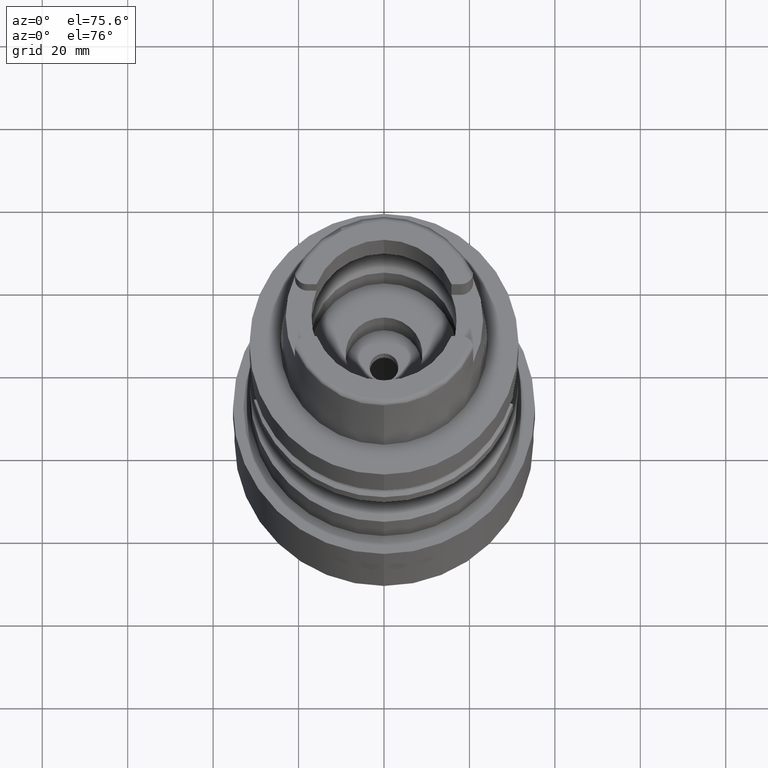
[diagram: clean part render]
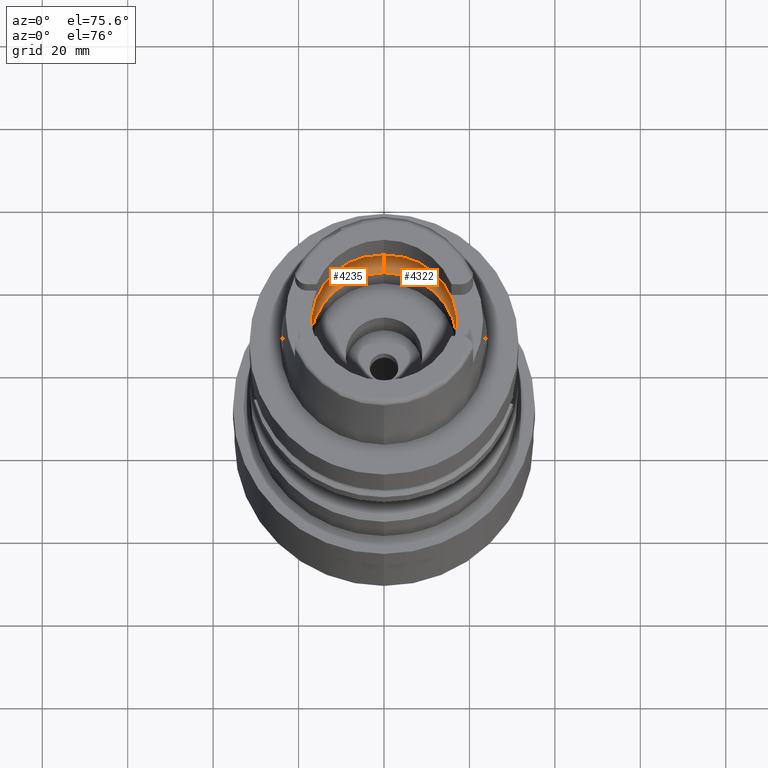
[diagram: same view with one multi-face feature highlighted, each face labeled with its STEP entity id]
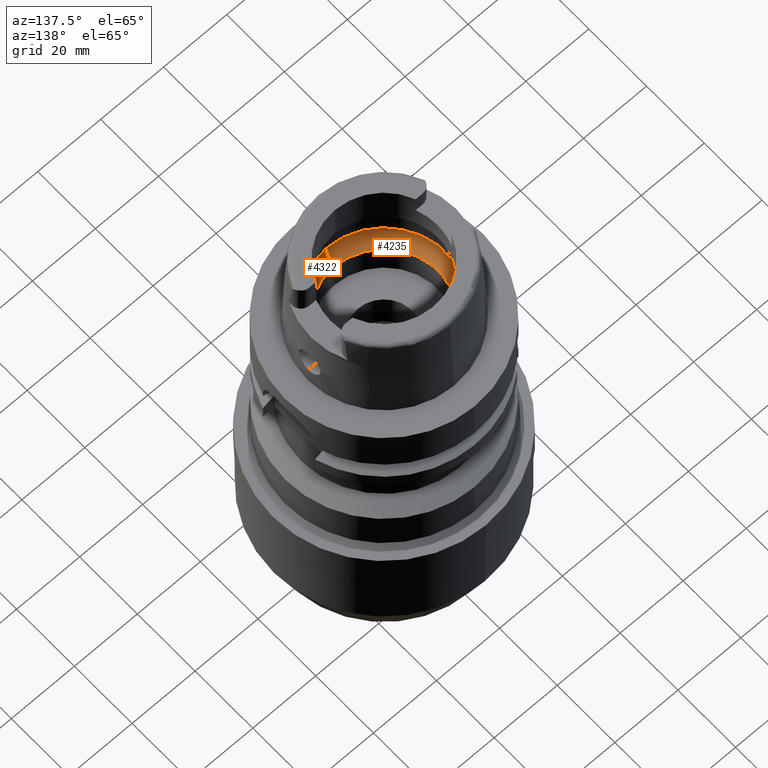
[diagram: same view with one multi-face feature highlighted, each face labeled with its STEP entity id]
A machine part, auxiliary view. The highlighted faces form ONE feature: a constant-radius fillet chain: 2 tangent blend faces with common blend radius 8 mm. The faces share edges in the B-rep.
A second angle (auxiliary view) of the same feature is appended — it is thin or edge-on in the first view.
Their STEP definitions:
[1] entity #4322 (Torus):
#2135=CARTESIAN_POINT('',(0.E0,-1.2E1,6.186348233825E0));
#2136=DIRECTION('',(-1.E0,0.E0,0.E0));
#2137=DIRECTION('',(0.E0,-6.5625E-1,-7.545435292281E-1));
#2138=AXIS2_PLACEMENT_3D('',#2135,#2136,#2137);
#2197=CARTESIAN_POINT('',(1.984575864666E1,-2.479085262491E0,6.186348233825E0));
#2224=CARTESIAN_POINT('',(1.984575864666E1,2.479085262491E0,6.186348233825E0));
#2243=CARTESIAN_POINT('',(1.994501428476E1,0.E0,5.25E0));
#2244=CARTESIAN_POINT('',(1.994501428476E1,-3.022957154465E-1,5.25E0));
#2245=CARTESIAN_POINT('',(1.994018609693E1,-9.060474356404E-1,
5.323296439589E0));
#2246=CARTESIAN_POINT('',(1.991331550025E1,-1.759139202252E0,5.647061182125E0));
#2247=CARTESIAN_POINT('',(1.987369610543E1,-2.255438229266E0,5.989294685574E0));
#2248=CARTESIAN_POINT('',(1.984575864666E1,-2.479085262491E0,6.186348233825E0));
#2253=CARTESIAN_POINT('',(0.E0,0.E0,6.186348233825E0));
#2254=DIRECTION('',(0.E0,0.E0,-1.E0));
#2255=DIRECTION('',(9.922879323328E-1,-1.239542631245E-1,0.E0));
#2256=AXIS2_PLACEMENT_3D('',#2253,#2254,#2255);
#2261=CARTESIAN_POINT('',(0.E0,0.E0,1.500000000001E-1));
#2262=DIRECTION('',(0.E0,0.E0,1.E0));
#2263=DIRECTION('',(0.E0,-1.E0,0.E0));
#2264=AXIS2_PLACEMENT_3D('',#2261,#2262,#2263);
#2269=CARTESIAN_POINT('',(0.E0,1.2E1,6.186348233825E0));
#2270=DIRECTION('',(1.E0,0.E0,0.E0));
#2271=DIRECTION('',(0.E0,6.5625E-1,-7.545435292281E-1));
#2272=AXIS2_PLACEMENT_3D('',#2269,#2270,#2271);
#2277=CARTESIAN_POINT('',(0.E0,0.E0,6.186348233825E0));
#2278=DIRECTION('',(0.E0,0.E0,-1.E0));
#2279=DIRECTION('',(0.E0,1.E0,0.E0));
#2280=AXIS2_PLACEMENT_3D('',#2277,#2278,#2279);
#2285=CARTESIAN_POINT('',(1.984575864666E1,2.479085262491E0,6.186348233825E0));
#2286=CARTESIAN_POINT('',(1.987369683552E1,2.255432384732E0,5.989289536004E0));
#2287=CARTESIAN_POINT('',(1.991331633330E1,1.759123026949E0,5.647052493715E0));
#2288=CARTESIAN_POINT('',(1.994018619685E1,9.060366292765E-1,5.323294636829E0));
#2289=CARTESIAN_POINT('',(1.994501428476E1,3.022911403854E-1,5.25E0));
#2290=CARTESIAN_POINT('',(1.994501428476E1,0.E0,5.25E0));
#2446=CARTESIAN_POINT('',(0.E0,-2.E1,6.186348233825E0));
#2447=VERTEX_POINT('',#2446);
#2448=CARTESIAN_POINT('',(0.E0,2.E1,6.186348233825E0));
#2449=VERTEX_POINT('',#2448);
#2454=VERTEX_POINT('',#2197);
#2456=VERTEX_POINT('',#2243);
#2457=VERTEX_POINT('',#2224);
#2458=CARTESIAN_POINT('',(0.E0,1.725E1,1.500000000001E-1));
#2459=VERTEX_POINT('',#2458);
#2460=CARTESIAN_POINT('',(0.E0,-1.725E1,1.500000000001E-1));
#2461=VERTEX_POINT('',#2460);
#4307=CARTESIAN_POINT('',(0.E0,0.E0,6.186348233825E0));
#4308=DIRECTION('',(0.E0,0.E0,1.E0));
#4309=DIRECTION('',(0.E0,1.E0,0.E0));
#4310=AXIS2_PLACEMENT_3D('',#4307,#4308,#4309);
#4311=TOROIDAL_SURFACE('',#4310,1.2E1,8.E0);
#4312=ORIENTED_EDGE('',*,*,#4297,.T.);
#4313=ORIENTED_EDGE('',*,*,#4286,.T.);
#4314=ORIENTED_EDGE('',*,*,#4229,.F.);
#4315=ORIENTED_EDGE('',*,*,#4194,.T.);
#4316=ORIENTED_EDGE('',*,*,#4226,.T.);
#4317=ORIENTED_EDGE('',*,*,#4280,.T.);
#4319=ORIENTED_EDGE('',*,*,#4318,.T.);
#4320=EDGE_LOOP('',(#4312,#4313,#4314,#4315,#4316,#4317,#4319));
#4321=FACE_OUTER_BOUND('',#4320,.F.);
#2139=CIRCLE('',#2138,8.E0);
#2249=B_SPLINE_CURVE_WITH_KNOTS('',3,(#2243,#2244,#2245,#2246,#2247,#2248),
.UNSPECIFIED.,.F.,.F.,(4,1,1,4),(0.E0,3.333333333333E-1,6.666666666667E-1,1.E0),
.UNSPECIFIED.);
#2257=CIRCLE('',#2256,2.E1);
#2265=CIRCLE('',#2264,1.725E1);
#2273=CIRCLE('',#2272,8.E0);
#2281=CIRCLE('',#2280,2.E1);
#2291=B_SPLINE_CURVE_WITH_KNOTS('',3,(#2285,#2286,#2287,#2288,#2289,#2290),
.UNSPECIFIED.,.F.,.F.,(4,1,1,4),(0.E0,3.333333333333E-1,6.666666666667E-1,1.E0),
.UNSPECIFIED.);
#4194=EDGE_CURVE('',#2461,#2459,#2265,.T.);
#4226=EDGE_CURVE('',#2459,#2449,#2273,.T.);
#4229=EDGE_CURVE('',#2461,#2447,#2139,.T.);
#4280=EDGE_CURVE('',#2449,#2457,#2281,.T.);
#4286=EDGE_CURVE('',#2454,#2447,#2257,.T.);
#4297=EDGE_CURVE('',#2456,#2454,#2249,.T.);
#4318=EDGE_CURVE('',#2457,#2456,#2291,.T.);
#4322=ADVANCED_FACE('',(#4321),#4311,.F.);
[2] entity #4235 (Torus):
#2099=CARTESIAN_POINT('',(-1.984575864666E1,-2.479085262491E0,
6.186348233825E0));
#2100=CARTESIAN_POINT('',(-1.987369637762E1,-2.255436050342E0,
5.989292765742E0));
#2101=CARTESIAN_POINT('',(-1.991331581871E1,-1.759133185383E0,
5.647057889337E0));
#2102=CARTESIAN_POINT('',(-1.994018615095E1,-9.060425565455E-1,
5.323295534197E0));
#2103=CARTESIAN_POINT('',(-1.994501428476E1,-3.022936309386E-1,5.25E0));
#2104=CARTESIAN_POINT('',(-1.994501428476E1,0.E0,5.25E0));
#2109=CARTESIAN_POINT('',(-1.994501428476E1,0.E0,5.25E0));
#2110=CARTESIAN_POINT('',(-1.994501428476E1,3.022931930043E-1,5.25E0));
#2111=CARTESIAN_POINT('',(-1.994018614423E1,9.060414364937E-1,
5.323295523152E0));
#2112=CARTESIAN_POINT('',(-1.991331601589E1,1.759129035713E0,5.647055777419E0));
#2113=CARTESIAN_POINT('',(-1.987369656375E1,2.255434560347E0,5.989291452920E0));
#2114=CARTESIAN_POINT('',(-1.984575864666E1,2.479085262491E0,6.186348233825E0));
#2119=CARTESIAN_POINT('',(0.E0,0.E0,6.186348233825E0));
#2120=DIRECTION('',(0.E0,0.E0,-1.E0));
#2121=DIRECTION('',(-9.922879323328E-1,1.239542631245E-1,0.E0));
#2122=AXIS2_PLACEMENT_3D('',#2119,#2120,#2121);
#2127=CARTESIAN_POINT('',(0.E0,0.E0,1.500000000001E-1));
#2128=DIRECTION('',(0.E0,0.E0,1.E0));
#2129=DIRECTION('',(0.E0,1.E0,0.E0));
#2130=AXIS2_PLACEMENT_3D('',#2127,#2128,#2129);
#2135=CARTESIAN_POINT('',(0.E0,-1.2E1,6.186348233825E0));
#2136=DIRECTION('',(-1.E0,0.E0,0.E0));
#2137=DIRECTION('',(0.E0,-6.5625E-1,-7.545435292281E-1));
#2138=AXIS2_PLACEMENT_3D('',#2135,#2136,#2137);
#2143=CARTESIAN_POINT('',(0.E0,0.E0,6.186348233825E0));
#2144=DIRECTION('',(0.E0,0.E0,-1.E0));
#2145=DIRECTION('',(0.E0,-1.E0,0.E0));
#2146=AXIS2_PLACEMENT_3D('',#2143,#2144,#2145);
#2169=CARTESIAN_POINT('',(-1.984575864666E1,-2.479085262491E0,
6.186348233825E0));
#2269=CARTESIAN_POINT('',(0.E0,1.2E1,6.186348233825E0));
#2270=DIRECTION('',(1.E0,0.E0,0.E0));
#2271=DIRECTION('',(0.E0,6.5625E-1,-7.545435292281E-1));
#2272=AXIS2_PLACEMENT_3D('',#2269,#2270,#2271);
#2445=VERTEX_POINT('',#2169);
#2446=CARTESIAN_POINT('',(0.E0,-2.E1,6.186348233825E0));
#2447=VERTEX_POINT('',#2446);
#2448=CARTESIAN_POINT('',(0.E0,2.E1,6.186348233825E0));
#2449=VERTEX_POINT('',#2448);
#2450=CARTESIAN_POINT('',(-1.984575864666E1,2.479085262490E0,6.186348233825E0));
#2451=VERTEX_POINT('',#2450);
#2452=CARTESIAN_POINT('',(-1.994501428476E1,0.E0,5.25E0));
#2453=VERTEX_POINT('',#2452);
#2458=CARTESIAN_POINT('',(0.E0,1.725E1,1.500000000001E-1));
#2459=VERTEX_POINT('',#2458);
#2460=CARTESIAN_POINT('',(0.E0,-1.725E1,1.500000000001E-1));
#2461=VERTEX_POINT('',#2460);
#4215=CARTESIAN_POINT('',(0.E0,0.E0,6.186348233825E0));
#4216=DIRECTION('',(0.E0,0.E0,1.E0));
#4217=DIRECTION('',(0.E0,1.E0,0.E0));
#4218=AXIS2_PLACEMENT_3D('',#4215,#4216,#4217);
#4219=TOROIDAL_SURFACE('',#4218,1.2E1,8.E0);
#4221=ORIENTED_EDGE('',*,*,#4220,.T.);
#4223=ORIENTED_EDGE('',*,*,#4222,.T.);
#4225=ORIENTED_EDGE('',*,*,#4224,.T.);
#4227=ORIENTED_EDGE('',*,*,#4226,.F.);
#4228=ORIENTED_EDGE('',*,*,#4210,.T.);
#4230=ORIENTED_EDGE('',*,*,#4229,.T.);
#4232=ORIENTED_EDGE('',*,*,#4231,.T.);
#4233=EDGE_LOOP('',(#4221,#4223,#4225,#4227,#4228,#4230,#4232));
#4234=FACE_OUTER_BOUND('',#4233,.F.);
#2105=B_SPLINE_CURVE_WITH_KNOTS('',3,(#2099,#2100,#2101,#2102,#2103,#2104),
.UNSPECIFIED.,.F.,.F.,(4,1,1,4),(0.E0,3.333333333333E-1,6.666666666667E-1,1.E0),
.UNSPECIFIED.);
#2115=B_SPLINE_CURVE_WITH_KNOTS('',3,(#2109,#2110,#2111,#2112,#2113,#2114),
.UNSPECIFIED.,.F.,.F.,(4,1,1,4),(0.E0,3.333333333333E-1,6.666666666667E-1,1.E0),
.UNSPECIFIED.);
#2123=CIRCLE('',#2122,2.E1);
#2131=CIRCLE('',#2130,1.725E1);
#2139=CIRCLE('',#2138,8.E0);
#2147=CIRCLE('',#2146,2.E1);
#2273=CIRCLE('',#2272,8.E0);
#4210=EDGE_CURVE('',#2459,#2461,#2131,.T.);
#4220=EDGE_CURVE('',#2445,#2453,#2105,.T.);
#4222=EDGE_CURVE('',#2453,#2451,#2115,.T.);
#4224=EDGE_CURVE('',#2451,#2449,#2123,.T.);
#4226=EDGE_CURVE('',#2459,#2449,#2273,.T.);
#4229=EDGE_CURVE('',#2461,#2447,#2139,.T.);
#4231=EDGE_CURVE('',#2447,#2445,#2147,.T.);
#4235=ADVANCED_FACE('',(#4234),#4219,.F.);